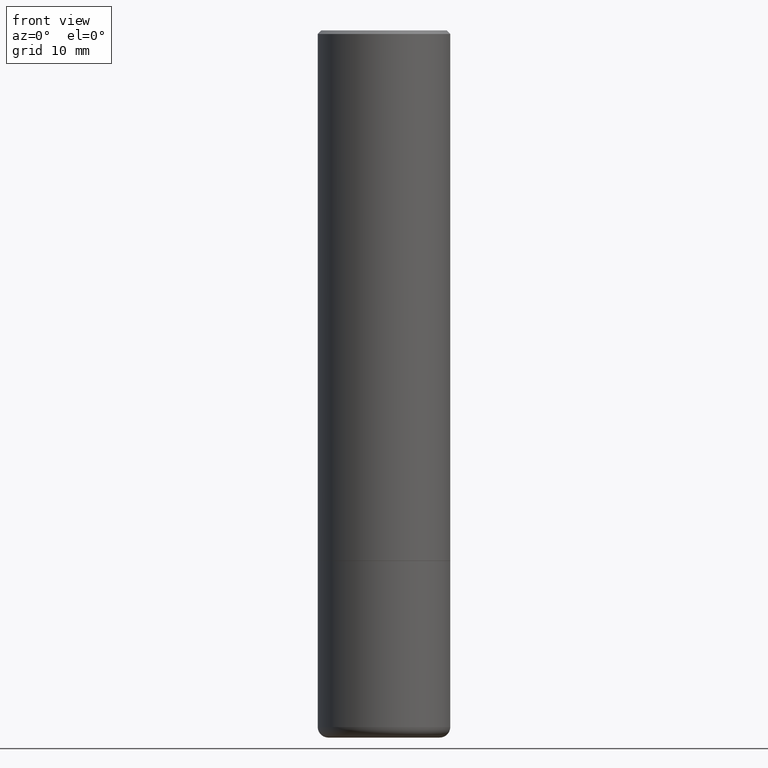
[diagram: clean part render]
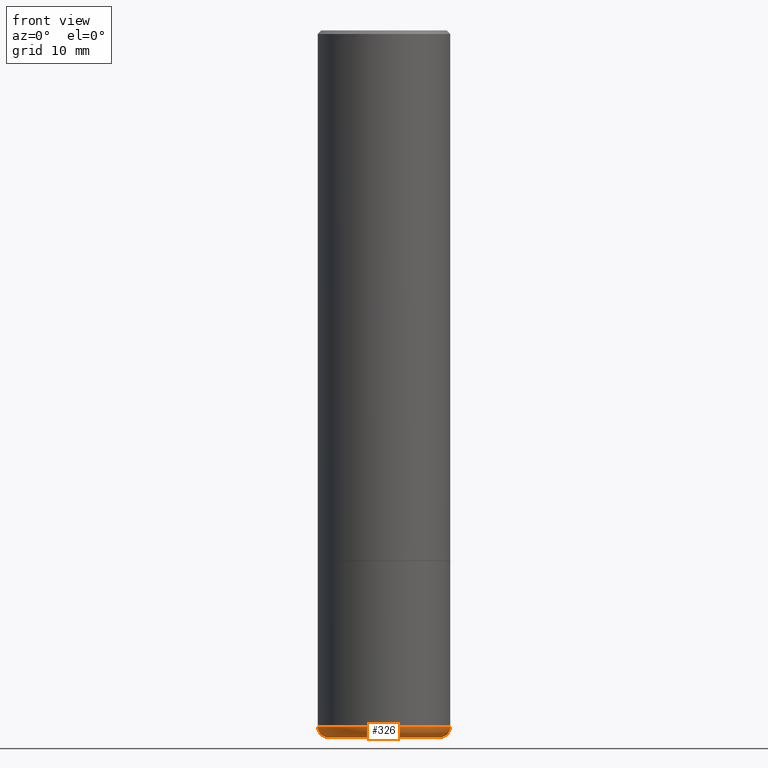
[diagram: same view with one face highlighted and labeled with its STEP entity id]
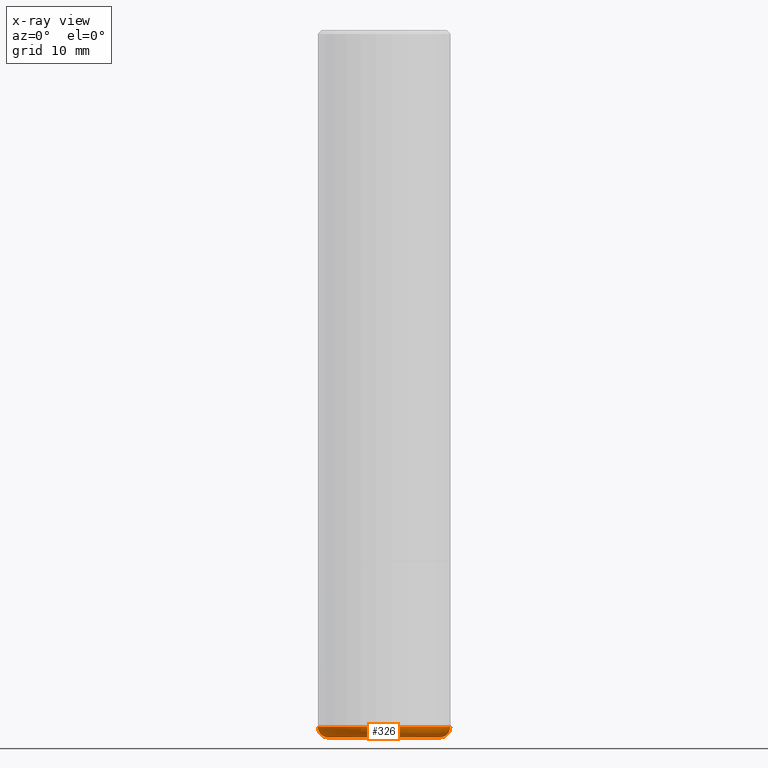
[diagram: x-ray of the same camera — body ghosted, the highlighted face saturated]
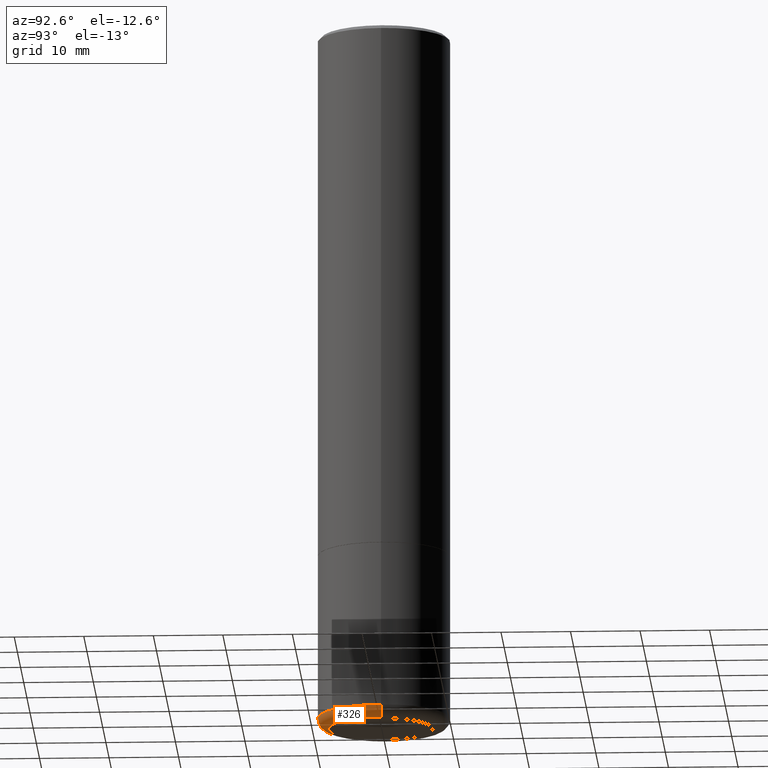
[diagram: same view with one face highlighted and labeled with its STEP entity id]
A machine part, front view. The second image highlights one B-rep face of the part: STEP entity #326.
The next image is the same camera in x-ray: the body ghosted, the highlighted face saturated — about 0% of this face is hidden behind the body in this view.
A second angle (auxiliary view) of the same face is appended — the face is thin or edge-on in the first view.
In plain terms, the highlighted toroidal blend (fillet) surface has major radius 8.001 mm and minor (blend) radius 1.524 mm.
Its self-contained STEP definition (entity closure, byte-faithful):
#1 = CARTESIAN_POINT ( 'NONE',  ( -0.3144764078700981180, -1.141167263810427951E-14, -3.999999999999999556 ) ) ;
#46 = CIRCLE ( 'NONE', #125, 0.3750000000000000555 ) ;
#76 = CARTESIAN_POINT ( 'NONE',  ( 9.781875224740545266E-29, -1.396592535537258075E-14, -3.999999999999999556 ) ) ;
#82 = CARTESIAN_POINT ( 'NONE',  ( 0.3150000000000002798, -1.595607769520781983E-14, -3.940002284616149097 ) ) ;
#86 = ORIENTED_EDGE ( 'NONE', *, *, #486, .T. ) ;
#93 = ORIENTED_EDGE ( 'NONE', *, *, #422, .T. ) ;
#97 = VERTEX_POINT ( 'NONE', #1 ) ;
#109 = AXIS2_PLACEMENT_3D ( 'NONE', #82, #328, #219 ) ;
#112 = DIRECTION ( 'NONE',  ( -2.445468806185136597E-29, 3.491481338843145583E-15, 1.000000000000000000 ) ) ;
#125 = AXIS2_PLACEMENT_3D ( 'NONE', #318, #358, #286 ) ;
#139 = DIRECTION ( 'NONE',  ( -2.445468806185136597E-29, 3.491481338843145583E-15, 1.000000000000000000 ) ) ;
#146 = DIRECTION ( 'NONE',  ( -1.000000000000000000, 7.105427357600993970E-15, 0.000000000000000000 ) ) ;
#151 = AXIS2_PLACEMENT_3D ( 'NONE', #435, #139, #214 ) ;
#176 = AXIS2_PLACEMENT_3D ( 'NONE', #262, #406, #146 ) ;
#205 = TOROIDAL_SURFACE ( 'NONE', #151, 0.3150000000000002798, 0.06000000000000023370 ) ;
#214 = DIRECTION ( 'NONE',  ( 1.000000000000000000, -6.982962677686269077E-15, 4.883557194083113462E-29 ) ) ;
#219 = DIRECTION ( 'NONE',  ( 1.000000000000000000, -6.982962677686271444E-15, 0.000000000000000000 ) ) ;
#230 = ORIENTED_EDGE ( 'NONE', *, *, #279, .F. ) ;
#256 = FACE_OUTER_BOUND ( 'NONE', #368, .T. ) ;
#262 = CARTESIAN_POINT ( 'NONE',  ( -0.3150000000000002798, -1.151823483409232651E-14, -3.940002284616149097 ) ) ;
#279 = EDGE_CURVE ( 'NONE', #288, #378, #46, .T. ) ;
#286 = DIRECTION ( 'NONE',  ( 1.000000000000000000, -6.982962677686266711E-15, 0.000000000000000000 ) ) ;
#288 = VERTEX_POINT ( 'NONE', #289 ) ;
#289 = CARTESIAN_POINT ( 'NONE',  ( -0.3750000000000000555, -9.450908975032663339E-15, -3.940002284616149097 ) ) ;
#291 = CIRCLE ( 'NONE', #490, 0.3144764078700981180 ) ;
#311 = ORIENTED_EDGE ( 'NONE', *, *, #469, .F. ) ;
#317 = CIRCLE ( 'NONE', #109, 0.06000000000000024758 ) ;
#318 = CARTESIAN_POINT ( 'NONE',  ( 9.635152683326964355E-29, -1.375644445173664487E-14, -3.940002284616149097 ) ) ;
#326 = ADVANCED_FACE ( 'NONE', ( #256 ), #205, .T. ) ;
#328 = DIRECTION ( 'NONE',  ( -6.982962677686266711E-15, -1.000000000000000000, 3.491481338843145583E-15 ) ) ;
#340 = VERTEX_POINT ( 'NONE', #361 ) ;
#358 = DIRECTION ( 'NONE',  ( -2.445468806185136597E-29, 3.491481338843145583E-15, 1.000000000000000000 ) ) ;
#361 = CARTESIAN_POINT ( 'NONE',  ( 0.3144764078700981180, -1.616190237454231844E-14, -3.999999999999999556 ) ) ;
#368 = EDGE_LOOP ( 'NONE', ( #311, #86, #93, #230 ) ) ;
#378 = VERTEX_POINT ( 'NONE', #487 ) ;
#406 = DIRECTION ( 'NONE',  ( 7.105427357601001859E-15, 1.000000000000000000, -3.491481338843145583E-15 ) ) ;
#422 = EDGE_CURVE ( 'NONE', #340, #378, #317, .T. ) ;
#435 = CARTESIAN_POINT ( 'NONE',  ( 9.635152683326964355E-29, -1.375644445173664487E-14, -3.940002284616149097 ) ) ;
#443 = DIRECTION ( 'NONE',  ( 1.000000000000000000, -6.982962677686269077E-15, 0.000000000000000000 ) ) ;
#460 = CIRCLE ( 'NONE', #176, 0.06000000000000024758 ) ;
#469 = EDGE_CURVE ( 'NONE', #97, #288, #460, .T. ) ;
#486 = EDGE_CURVE ( 'NONE', #97, #340, #291, .T. ) ;
#487 = CARTESIAN_POINT ( 'NONE',  ( 0.3750000000000000555, -1.637505545586899647E-14, -3.940002284616149097 ) ) ;
#490 = AXIS2_PLACEMENT_3D ( 'NONE', #76, #112, #443 ) ;